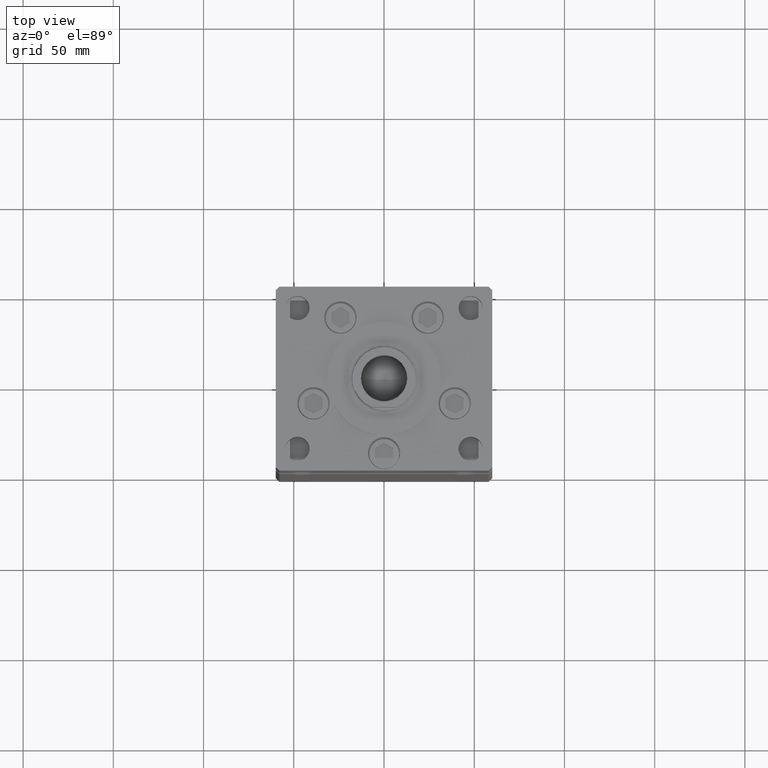
[diagram: clean part render]
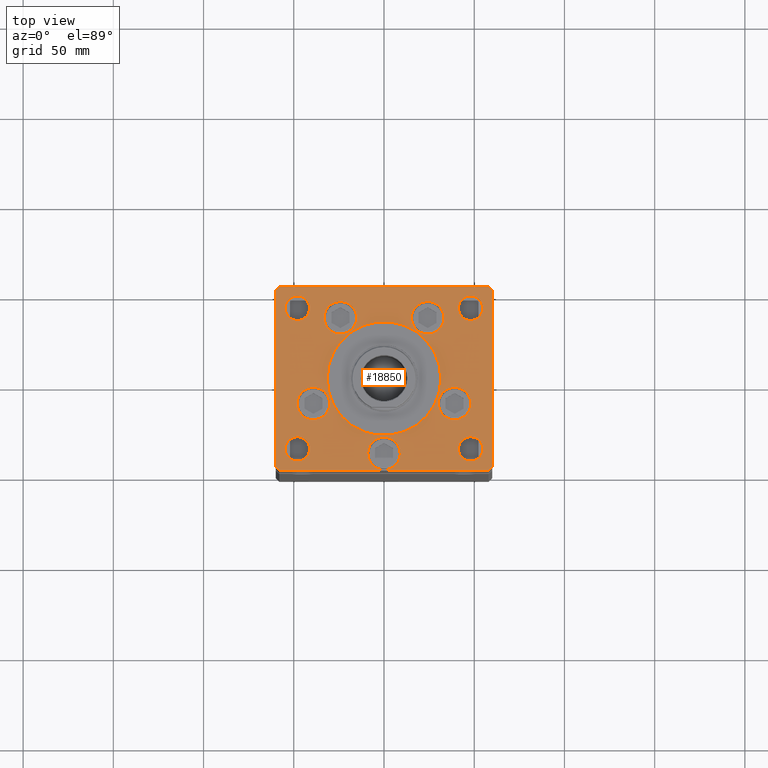
[diagram: same view with one face highlighted and labeled with its STEP entity id]
A machine part, top view. The second image highlights one B-rep face of the part: STEP entity #18850.
In plain terms, the highlighted planar face has unit normal (0, 0, 1).
Its self-contained STEP definition (entity closure, byte-faithful):
#155 = DIRECTION ( 'NONE',  ( 1.000000000000000000, 0.000000000000000000, 0.000000000000000000 ) ) ;
#329 = ORIENTED_EDGE ( 'NONE', *, *, #29688, .F. ) ;
#555 = CARTESIAN_POINT ( 'NONE',  ( -41.25000000000000000, 39.00000000000000711, 0.000000000000000000 ) ) ;
#593 = EDGE_CURVE ( 'NONE', #9785, #7400, #41994, .T. ) ;
#731 = EDGE_LOOP ( 'NONE', ( #52017, #38465 ) ) ;
#843 = ORIENTED_EDGE ( 'NONE', *, *, #45547, .T. ) ;
#1045 = DIRECTION ( 'NONE',  ( 0.000000000000000000, 0.000000000000000000, 1.000000000000000000 ) ) ;
#1464 = EDGE_LOOP ( 'NONE', ( #329, #30172 ) ) ;
#1577 = CARTESIAN_POINT ( 'NONE',  ( 24.19288941894913592, 33.71874999999998579, 0.000000000000000000 ) ) ;
#1680 = CARTESIAN_POINT ( 'NONE',  ( 58.00000000000001421, -50.99999999999992184, 0.000000000000000000 ) ) ;
#1795 = CARTESIAN_POINT ( 'NONE',  ( -15.19288941894913592, 33.71874999999998579, 0.000000000000000000 ) ) ;
#1818 = FACE_BOUND ( 'NONE', #12118, .T. ) ;
#1908 = ORIENTED_EDGE ( 'NONE', *, *, #10230, .F. ) ;
#2002 = EDGE_LOOP ( 'NONE', ( #17776, #40596 ) ) ;
#2124 = AXIS2_PLACEMENT_3D ( 'NONE', #40928, #32627, #3130 ) ;
#2241 = DIRECTION ( 'NONE',  ( 1.000000000000000000, 0.000000000000000000, 0.000000000000000000 ) ) ;
#2253 = ORIENTED_EDGE ( 'NONE', *, *, #22367, .T. ) ;
#2313 = CARTESIAN_POINT ( 'NONE',  ( -48.00000000000000000, -39.00000000000001421, 0.000000000000000000 ) ) ;
#2784 = VERTEX_POINT ( 'NONE', #20935 ) ;
#2849 = ORIENTED_EDGE ( 'NONE', *, *, #10592, .F. ) ;
#3130 = DIRECTION ( 'NONE',  ( 1.000000000000000000, 0.000000000000000000, 0.000000000000000000 ) ) ;
#3173 = VERTEX_POINT ( 'NONE', #49009 ) ;
#3340 = DIRECTION ( 'NONE',  ( 1.000000000000000000, 0.000000000000000000, 0.000000000000000000 ) ) ;
#3361 = ORIENTED_EDGE ( 'NONE', *, *, #18353, .T. ) ;
#3507 = EDGE_CURVE ( 'NONE', #12460, #43556, #18120, .T. ) ;
#3613 = LINE ( 'NONE', #7911, #28981 ) ;
#3963 = CARTESIAN_POINT ( 'NONE',  ( 15.19288941894913236, 33.71874999999998579, 0.000000000000000000 ) ) ;
#4186 = DIRECTION ( 'NONE',  ( -0.000000000000000000, -0.000000000000000000, -1.000000000000000000 ) ) ;
#4495 = AXIS2_PLACEMENT_3D ( 'NONE', #42277, #26458, #21917 ) ;
#4581 = AXIS2_PLACEMENT_3D ( 'NONE', #15291, #8835, #12314 ) ;
#4723 = AXIS2_PLACEMENT_3D ( 'NONE', #18201, #42062, #50384 ) ;
#4916 = DIRECTION ( 'NONE',  ( -1.000000000000000000, 0.000000000000000000, 0.000000000000000000 ) ) ;
#4980 = CARTESIAN_POINT ( 'NONE',  ( -24.19288941894913592, 33.71874999999998579, 0.000000000000000000 ) ) ;
#5183 = CARTESIAN_POINT ( 'NONE',  ( 39.12657522565563539, -13.83333333333332860, 0.000000000000000000 ) ) ;
#5213 = CARTESIAN_POINT ( 'NONE',  ( -54.75000000000000000, -39.00000000000001421, 0.000000000000000000 ) ) ;
#5319 = VECTOR ( 'NONE', #14460, 1000.000000000000114 ) ;
#5346 = DIRECTION ( 'NONE',  ( 1.000000000000000000, 0.000000000000000000, 0.000000000000000000 ) ) ;
#5646 = VERTEX_POINT ( 'NONE', #38600 ) ;
#5706 = AXIS2_PLACEMENT_3D ( 'NONE', #36671, #4186, #53040 ) ;
#5819 = AXIS2_PLACEMENT_3D ( 'NONE', #35813, #23756, #3340 ) ;
#5984 = CARTESIAN_POINT ( 'NONE',  ( 58.00000000000000000, 51.00000000000000711, 0.000000000000000000 ) ) ;
#6078 = CARTESIAN_POINT ( 'NONE',  ( 48.12657522565563539, -13.83333333333332860, 0.000000000000000000 ) ) ;
#6122 = CARTESIAN_POINT ( 'NONE',  ( 60.00000000000001421, 49.00000000000002842, 0.000000000000000000 ) ) ;
#6208 = CIRCLE ( 'NONE', #29333, 31.50000000000000000 ) ;
#6375 = EDGE_CURVE ( 'NONE', #46124, #32208, #14989, .T. ) ;
#6544 = VERTEX_POINT ( 'NONE', #52809 ) ;
#6561 = EDGE_LOOP ( 'NONE', ( #42421, #52048 ) ) ;
#6615 = ORIENTED_EDGE ( 'NONE', *, *, #34108, .F. ) ;
#6679 = CARTESIAN_POINT ( 'NONE',  ( 58.00000000000001421, -50.99999999999992184, 0.000000000000000000 ) ) ;
#6985 = CARTESIAN_POINT ( 'NONE',  ( 48.00000000000000000, -39.00000000000001421, 0.000000000000000000 ) ) ;
#7270 = VECTOR ( 'NONE', #50519, 1000.000000000000000 ) ;
#7381 = DIRECTION ( 'NONE',  ( 0.7071067811865474617, -0.7071067811865474617, 0.000000000000000000 ) ) ;
#7400 = VERTEX_POINT ( 'NONE', #3963 ) ;
#7911 = CARTESIAN_POINT ( 'NONE',  ( -60.00000000000000000, -49.00000000000004263, 0.000000000000000000 ) ) ;
#8192 = DIRECTION ( 'NONE',  ( 1.000000000000000000, 0.000000000000000000, 0.000000000000000000 ) ) ;
#8294 = VECTOR ( 'NONE', #42813, 1000.000000000000000 ) ;
#8451 = DIRECTION ( 'NONE',  ( 0.000000000000000000, 0.000000000000000000, 1.000000000000000000 ) ) ;
#8496 = DIRECTION ( 'NONE',  ( -1.000000000000000000, 0.000000000000000000, 0.000000000000000000 ) ) ;
#8554 = CIRCLE ( 'NONE', #17140, 9.000000000000001776 ) ;
#8772 = ORIENTED_EDGE ( 'NONE', *, *, #39119, .T. ) ;
#8835 = DIRECTION ( 'NONE',  ( 0.000000000000000000, 0.000000000000000000, 1.000000000000000000 ) ) ;
#9180 = DIRECTION ( 'NONE',  ( 1.000000000000000000, 0.000000000000000000, 0.000000000000000000 ) ) ;
#9246 = EDGE_LOOP ( 'NONE', ( #16247, #40904, #29467, #45911, #2253, #3361, #48884, #11221 ) ) ;
#9347 = FACE_BOUND ( 'NONE', #35577, .T. ) ;
#9785 = VERTEX_POINT ( 'NONE', #37650 ) ;
#9880 = DIRECTION ( 'NONE',  ( -0.7071067811865536790, 0.7071067811865414665, 0.000000000000000000 ) ) ;
#10230 = EDGE_CURVE ( 'NONE', #20457, #43816, #13156, .T. ) ;
#10592 = EDGE_CURVE ( 'NONE', #15648, #3173, #40583, .T. ) ;
#10843 = VERTEX_POINT ( 'NONE', #14515 ) ;
#11221 = ORIENTED_EDGE ( 'NONE', *, *, #20250, .T. ) ;
#11376 = EDGE_CURVE ( 'NONE', #20351, #21675, #27651, .T. ) ;
#11788 = EDGE_CURVE ( 'NONE', #5646, #18176, #6208, .T. ) ;
#11800 = VERTEX_POINT ( 'NONE', #43788 ) ;
#12118 = EDGE_LOOP ( 'NONE', ( #843, #8772 ) ) ;
#12314 = DIRECTION ( 'NONE',  ( 1.000000000000000000, 0.000000000000000000, 0.000000000000000000 ) ) ;
#12460 = VERTEX_POINT ( 'NONE', #22384 ) ;
#12552 = CARTESIAN_POINT ( 'NONE',  ( 54.75000000000000000, 39.00000000000000000, 0.000000000000000000 ) ) ;
#12716 = AXIS2_PLACEMENT_3D ( 'NONE', #24500, #16433, #9180 ) ;
#13156 = CIRCLE ( 'NONE', #4581, 6.749999999999999112 ) ;
#13183 = EDGE_CURVE ( 'NONE', #7400, #9785, #20870, .T. ) ;
#13346 = VECTOR ( 'NONE', #44727, 1000.000000000000000 ) ;
#13498 = DIRECTION ( 'NONE',  ( 0.000000000000000000, 0.000000000000000000, 1.000000000000000000 ) ) ;
#13620 = DIRECTION ( 'NONE',  ( -0.000000000000000000, -0.000000000000000000, -1.000000000000000000 ) ) ;
#14010 = AXIS2_PLACEMENT_3D ( 'NONE', #1577, #1045, #5346 ) ;
#14166 = FACE_BOUND ( 'NONE', #23516, .T. ) ;
#14235 = VECTOR ( 'NONE', #9880, 1000.000000000000000 ) ;
#14434 = CIRCLE ( 'NONE', #28151, 9.000000000000001776 ) ;
#14460 = DIRECTION ( 'NONE',  ( 0.7071067811865474617, 0.7071067811865474617, 0.000000000000000000 ) ) ;
#14515 = CARTESIAN_POINT ( 'NONE',  ( -60.00000000000000000, -49.00000000000004263, 0.000000000000000000 ) ) ;
#14989 = LINE ( 'NONE', #6679, #5319 ) ;
#15291 = CARTESIAN_POINT ( 'NONE',  ( 48.00000000000000000, 39.00000000000000000, 0.000000000000000000 ) ) ;
#15387 = EDGE_CURVE ( 'NONE', #3173, #15648, #32053, .T. ) ;
#15648 = VERTEX_POINT ( 'NONE', #5213 ) ;
#15782 = CARTESIAN_POINT ( 'NONE',  ( -54.75000000000000000, 39.00000000000000711, 0.000000000000000000 ) ) ;
#15940 = CARTESIAN_POINT ( 'NONE',  ( -31.50000000000000000, -6.938893903907228378E-15, 0.000000000000000000 ) ) ;
#16247 = ORIENTED_EDGE ( 'NONE', *, *, #29512, .T. ) ;
#16433 = DIRECTION ( 'NONE',  ( 0.000000000000000000, 0.000000000000000000, 1.000000000000000000 ) ) ;
#16556 = LINE ( 'NONE', #44467, #13346 ) ;
#16719 = CIRCLE ( 'NONE', #2124, 6.749999999999999112 ) ;
#17140 = AXIS2_PLACEMENT_3D ( 'NONE', #5183, #13498, #25589 ) ;
#17230 = AXIS2_PLACEMENT_3D ( 'NONE', #50550, #26151, #47048 ) ;
#17295 = VERTEX_POINT ( 'NONE', #40861 ) ;
#17469 = AXIS2_PLACEMENT_3D ( 'NONE', #18625, #39782, #2241 ) ;
#17776 = ORIENTED_EDGE ( 'NONE', *, *, #34462, .F. ) ;
#18021 = CARTESIAN_POINT ( 'NONE',  ( 41.25000000000000000, -39.00000000000001421, 0.000000000000000000 ) ) ;
#18120 = CIRCLE ( 'NONE', #17230, 9.000000000000001776 ) ;
#18176 = VERTEX_POINT ( 'NONE', #15940 ) ;
#18201 = CARTESIAN_POINT ( 'NONE',  ( 0.000000000000000000, 0.000000000000000000, 0.000000000000000000 ) ) ;
#18353 = EDGE_CURVE ( 'NONE', #46920, #17295, #50790, .T. ) ;
#18556 = EDGE_CURVE ( 'NONE', #38534, #46124, #20178, .T. ) ;
#18625 = CARTESIAN_POINT ( 'NONE',  ( -48.00000000000000000, -39.00000000000001421, 0.000000000000000000 ) ) ;
#18850 = ADVANCED_FACE ( 'NONE', ( #38574, #49846, #30283, #14166, #22235, #46098, #9347, #37509, #25456, #46630, #1818 ), #25717, .T. ) ;
#18865 = DIRECTION ( 'NONE',  ( 0.000000000000000000, 0.000000000000000000, 1.000000000000000000 ) ) ;
#19621 = CARTESIAN_POINT ( 'NONE',  ( 0.000000000000000000, -41.50000000000000000, 0.000000000000000000 ) ) ;
#20178 = LINE ( 'NONE', #41328, #20188 ) ;
#20188 = VECTOR ( 'NONE', #48845, 1000.000000000000000 ) ;
#20250 = EDGE_CURVE ( 'NONE', #35783, #10843, #16556, .T. ) ;
#20351 = VERTEX_POINT ( 'NONE', #6078 ) ;
#20457 = VERTEX_POINT ( 'NONE', #52186 ) ;
#20870 = CIRCLE ( 'NONE', #14010, 9.000000000000001776 ) ;
#20935 = CARTESIAN_POINT ( 'NONE',  ( 60.00000000000001421, 49.00000000000002842, 0.000000000000000000 ) ) ;
#20942 = VERTEX_POINT ( 'NONE', #18021 ) ;
#20966 = CARTESIAN_POINT ( 'NONE',  ( -30.12657522565563539, -13.83333333333332860, 0.000000000000000000 ) ) ;
#21124 = CARTESIAN_POINT ( 'NONE',  ( 54.75000000000000000, -39.00000000000001421, 0.000000000000000000 ) ) ;
#21675 = VERTEX_POINT ( 'NONE', #49499 ) ;
#21772 = AXIS2_PLACEMENT_3D ( 'NONE', #2313, #34254, #50348 ) ;
#21917 = DIRECTION ( 'NONE',  ( 1.000000000000000000, 0.000000000000000000, 0.000000000000000000 ) ) ;
#22183 = LINE ( 'NONE', #51398, #8294 ) ;
#22235 = FACE_BOUND ( 'NONE', #6561, .T. ) ;
#22367 = EDGE_CURVE ( 'NONE', #2784, #46920, #46628, .T. ) ;
#22384 = CARTESIAN_POINT ( 'NONE',  ( -48.12657522565563539, -13.83333333333332682, 0.000000000000000000 ) ) ;
#23150 = EDGE_CURVE ( 'NONE', #43626, #31249, #47668, .T. ) ;
#23238 = VERTEX_POINT ( 'NONE', #33705 ) ;
#23516 = EDGE_LOOP ( 'NONE', ( #50846, #6615 ) ) ;
#23654 = DIRECTION ( 'NONE',  ( 0.000000000000000000, 0.000000000000000000, 1.000000000000000000 ) ) ;
#23756 = DIRECTION ( 'NONE',  ( 0.000000000000000000, 0.000000000000000000, 1.000000000000000000 ) ) ;
#24500 = CARTESIAN_POINT ( 'NONE',  ( 0.000000000000000000, -6.938893903907228378E-15, 0.000000000000000000 ) ) ;
#25002 = EDGE_CURVE ( 'NONE', #32208, #2784, #22183, .T. ) ;
#25456 = FACE_BOUND ( 'NONE', #36383, .T. ) ;
#25589 = DIRECTION ( 'NONE',  ( 1.000000000000000000, 0.000000000000000000, 0.000000000000000000 ) ) ;
#25717 = PLANE ( 'NONE',  #4723 ) ;
#26151 = DIRECTION ( 'NONE',  ( 0.000000000000000000, 0.000000000000000000, 1.000000000000000000 ) ) ;
#26160 = CARTESIAN_POINT ( 'NONE',  ( -60.00000000000000000, 49.00000000000000000, 0.000000000000000000 ) ) ;
#26458 = DIRECTION ( 'NONE',  ( 0.000000000000000000, 0.000000000000000000, 1.000000000000000000 ) ) ;
#27473 = AXIS2_PLACEMENT_3D ( 'NONE', #45461, #8451, #8192 ) ;
#27651 = CIRCLE ( 'NONE', #4495, 9.000000000000001776 ) ;
#27681 = CIRCLE ( 'NONE', #43936, 9.000000000000000000 ) ;
#28151 = AXIS2_PLACEMENT_3D ( 'NONE', #42217, #46514, #30698 ) ;
#28420 = EDGE_CURVE ( 'NONE', #6544, #23238, #38368, .T. ) ;
#28981 = VECTOR ( 'NONE', #7381, 1000.000000000000114 ) ;
#29333 = AXIS2_PLACEMENT_3D ( 'NONE', #36007, #18865, #52372 ) ;
#29467 = ORIENTED_EDGE ( 'NONE', *, *, #6375, .T. ) ;
#29512 = EDGE_CURVE ( 'NONE', #10843, #38534, #3613, .T. ) ;
#29688 = EDGE_CURVE ( 'NONE', #43556, #12460, #14434, .T. ) ;
#30066 = AXIS2_PLACEMENT_3D ( 'NONE', #19621, #23654, #35974 ) ;
#30172 = ORIENTED_EDGE ( 'NONE', *, *, #3507, .F. ) ;
#30283 = FACE_BOUND ( 'NONE', #51413, .T. ) ;
#30645 = EDGE_CURVE ( 'NONE', #18176, #5646, #38436, .T. ) ;
#30698 = DIRECTION ( 'NONE',  ( 1.000000000000000000, 0.000000000000000000, 0.000000000000000000 ) ) ;
#31249 = VERTEX_POINT ( 'NONE', #15782 ) ;
#32053 = CIRCLE ( 'NONE', #21772, 6.749999999999999112 ) ;
#32208 = VERTEX_POINT ( 'NONE', #42254 ) ;
#32627 = DIRECTION ( 'NONE',  ( 0.000000000000000000, 0.000000000000000000, 1.000000000000000000 ) ) ;
#32910 = DIRECTION ( 'NONE',  ( 0.000000000000000000, 0.000000000000000000, 1.000000000000000000 ) ) ;
#33637 = AXIS2_PLACEMENT_3D ( 'NONE', #6985, #51799, #8496 ) ;
#33705 = CARTESIAN_POINT ( 'NONE',  ( -9.000000000000000000, -41.50000000000000000, 0.000000000000000000 ) ) ;
#34108 = EDGE_CURVE ( 'NONE', #21675, #20351, #8554, .T. ) ;
#34254 = DIRECTION ( 'NONE',  ( 0.000000000000000000, 0.000000000000000000, 1.000000000000000000 ) ) ;
#34376 = VECTOR ( 'NONE', #35991, 1000.000000000000000 ) ;
#34462 = EDGE_CURVE ( 'NONE', #51867, #11800, #46278, .T. ) ;
#34636 = DIRECTION ( 'NONE',  ( 0.000000000000000000, 0.000000000000000000, 1.000000000000000000 ) ) ;
#35577 = EDGE_LOOP ( 'NONE', ( #40104, #44621 ) ) ;
#35783 = VERTEX_POINT ( 'NONE', #26160 ) ;
#35813 = CARTESIAN_POINT ( 'NONE',  ( 0.000000000000000000, -41.50000000000000000, 0.000000000000000000 ) ) ;
#35974 = DIRECTION ( 'NONE',  ( 1.000000000000000000, 0.000000000000000000, 0.000000000000000000 ) ) ;
#35991 = DIRECTION ( 'NONE',  ( -0.7071067811865536790, -0.7071067811865414665, 0.000000000000000000 ) ) ;
#36007 = CARTESIAN_POINT ( 'NONE',  ( 0.000000000000000000, -6.938893903907228378E-15, 0.000000000000000000 ) ) ;
#36197 = EDGE_CURVE ( 'NONE', #23238, #6544, #46320, .T. ) ;
#36383 = EDGE_LOOP ( 'NONE', ( #39280, #2849 ) ) ;
#36668 = CARTESIAN_POINT ( 'NONE',  ( 58.00000000000000000, 51.00000000000000711, 0.000000000000000000 ) ) ;
#36671 = CARTESIAN_POINT ( 'NONE',  ( -48.00000000000000000, 39.00000000000000711, 0.000000000000000000 ) ) ;
#37488 = VERTEX_POINT ( 'NONE', #21124 ) ;
#37509 = FACE_BOUND ( 'NONE', #43683, .T. ) ;
#37650 = CARTESIAN_POINT ( 'NONE',  ( 33.19288941894913592, 33.71874999999998579, 0.000000000000000000 ) ) ;
#37765 = CARTESIAN_POINT ( 'NONE',  ( 48.00000000000000000, -39.00000000000001421, 0.000000000000000000 ) ) ;
#38368 = CIRCLE ( 'NONE', #5819, 9.000000000000000000 ) ;
#38436 = CIRCLE ( 'NONE', #12716, 31.50000000000000000 ) ;
#38465 = ORIENTED_EDGE ( 'NONE', *, *, #11788, .F. ) ;
#38534 = VERTEX_POINT ( 'NONE', #43904 ) ;
#38574 = FACE_BOUND ( 'NONE', #731, .T. ) ;
#38600 = CARTESIAN_POINT ( 'NONE',  ( 31.50000000000000000, -3.081256486593065689E-15, 0.000000000000000000 ) ) ;
#38651 = DIRECTION ( 'NONE',  ( 1.000000000000000000, 0.000000000000000000, 0.000000000000000000 ) ) ;
#39119 = EDGE_CURVE ( 'NONE', #20942, #37488, #41290, .T. ) ;
#39280 = ORIENTED_EDGE ( 'NONE', *, *, #15387, .F. ) ;
#39782 = DIRECTION ( 'NONE',  ( 0.000000000000000000, 0.000000000000000000, 1.000000000000000000 ) ) ;
#40104 = ORIENTED_EDGE ( 'NONE', *, *, #23150, .T. ) ;
#40583 = CIRCLE ( 'NONE', #17469, 6.749999999999999112 ) ;
#40596 = ORIENTED_EDGE ( 'NONE', *, *, #46874, .F. ) ;
#40861 = CARTESIAN_POINT ( 'NONE',  ( -57.99999999999998579, 50.99999999999997868, 0.000000000000000000 ) ) ;
#40904 = ORIENTED_EDGE ( 'NONE', *, *, #18556, .T. ) ;
#40928 = CARTESIAN_POINT ( 'NONE',  ( 48.00000000000000000, 39.00000000000000000, 0.000000000000000000 ) ) ;
#41290 = CIRCLE ( 'NONE', #48984, 6.749999999999999112 ) ;
#41328 = CARTESIAN_POINT ( 'NONE',  ( -58.00000000000000711, -51.00000000000002842, 0.000000000000000000 ) ) ;
#41667 = CARTESIAN_POINT ( 'NONE',  ( -48.00000000000000000, 39.00000000000000711, 0.000000000000000000 ) ) ;
#41711 = EDGE_CURVE ( 'NONE', #17295, #35783, #47542, .T. ) ;
#41994 = CIRCLE ( 'NONE', #27473, 9.000000000000001776 ) ;
#42062 = DIRECTION ( 'NONE',  ( -0.000000000000000000, 0.000000000000000000, 1.000000000000000000 ) ) ;
#42217 = CARTESIAN_POINT ( 'NONE',  ( -39.12657522565563539, -13.83333333333332860, 0.000000000000000000 ) ) ;
#42254 = CARTESIAN_POINT ( 'NONE',  ( 60.00000000000001421, -48.99999999999992895, 0.000000000000000000 ) ) ;
#42277 = CARTESIAN_POINT ( 'NONE',  ( 39.12657522565563539, -13.83333333333332860, 0.000000000000000000 ) ) ;
#42421 = ORIENTED_EDGE ( 'NONE', *, *, #28420, .F. ) ;
#42813 = DIRECTION ( 'NONE',  ( 0.000000000000000000, 1.000000000000000000, 0.000000000000000000 ) ) ;
#43032 = ORIENTED_EDGE ( 'NONE', *, *, #51347, .F. ) ;
#43556 = VERTEX_POINT ( 'NONE', #20966 ) ;
#43626 = VERTEX_POINT ( 'NONE', #555 ) ;
#43683 = EDGE_LOOP ( 'NONE', ( #43032, #1908 ) ) ;
#43788 = CARTESIAN_POINT ( 'NONE',  ( -33.19288941894913592, 33.71874999999998579, 0.000000000000000000 ) ) ;
#43816 = VERTEX_POINT ( 'NONE', #12552 ) ;
#43904 = CARTESIAN_POINT ( 'NONE',  ( -58.00000000000000711, -51.00000000000002842, 0.000000000000000000 ) ) ;
#43936 = AXIS2_PLACEMENT_3D ( 'NONE', #4980, #32910, #155 ) ;
#44467 = CARTESIAN_POINT ( 'NONE',  ( -60.00000000000000000, 49.00000000000000000, 0.000000000000000000 ) ) ;
#44621 = ORIENTED_EDGE ( 'NONE', *, *, #47356, .T. ) ;
#44727 = DIRECTION ( 'NONE',  ( 0.000000000000000000, -1.000000000000000000, 0.000000000000000000 ) ) ;
#44810 = ORIENTED_EDGE ( 'NONE', *, *, #593, .F. ) ;
#45461 = CARTESIAN_POINT ( 'NONE',  ( 24.19288941894913592, 33.71874999999998579, 0.000000000000000000 ) ) ;
#45547 = EDGE_CURVE ( 'NONE', #37488, #20942, #51642, .T. ) ;
#45556 = DIRECTION ( 'NONE',  ( -1.000000000000000000, 0.000000000000000000, 0.000000000000000000 ) ) ;
#45911 = ORIENTED_EDGE ( 'NONE', *, *, #25002, .T. ) ;
#46098 = FACE_BOUND ( 'NONE', #1464, .T. ) ;
#46124 = VERTEX_POINT ( 'NONE', #1680 ) ;
#46278 = CIRCLE ( 'NONE', #48833, 9.000000000000000000 ) ;
#46320 = CIRCLE ( 'NONE', #30066, 9.000000000000000000 ) ;
#46514 = DIRECTION ( 'NONE',  ( 0.000000000000000000, 0.000000000000000000, 1.000000000000000000 ) ) ;
#46628 = LINE ( 'NONE', #6122, #14235 ) ;
#46630 = FACE_OUTER_BOUND ( 'NONE', #9246, .T. ) ;
#46874 = EDGE_CURVE ( 'NONE', #11800, #51867, #27681, .T. ) ;
#46920 = VERTEX_POINT ( 'NONE', #36668 ) ;
#47048 = DIRECTION ( 'NONE',  ( 1.000000000000000000, 0.000000000000000000, 0.000000000000000000 ) ) ;
#47356 = EDGE_CURVE ( 'NONE', #31249, #43626, #49944, .T. ) ;
#47542 = LINE ( 'NONE', #52092, #34376 ) ;
#47668 = CIRCLE ( 'NONE', #5706, 6.749999999999999112 ) ;
#48833 = AXIS2_PLACEMENT_3D ( 'NONE', #51266, #34636, #38651 ) ;
#48845 = DIRECTION ( 'NONE',  ( 1.000000000000000000, 9.570888143320313916E-16, 0.000000000000000000 ) ) ;
#48884 = ORIENTED_EDGE ( 'NONE', *, *, #41711, .T. ) ;
#48984 = AXIS2_PLACEMENT_3D ( 'NONE', #37765, #13620, #45556 ) ;
#49009 = CARTESIAN_POINT ( 'NONE',  ( -41.25000000000000000, -39.00000000000001421, 0.000000000000000000 ) ) ;
#49427 = ORIENTED_EDGE ( 'NONE', *, *, #13183, .F. ) ;
#49499 = CARTESIAN_POINT ( 'NONE',  ( 30.12657522565563539, -13.83333333333332682, 0.000000000000000000 ) ) ;
#49846 = FACE_BOUND ( 'NONE', #2002, .T. ) ;
#49944 = CIRCLE ( 'NONE', #51691, 6.749999999999999112 ) ;
#50348 = DIRECTION ( 'NONE',  ( 1.000000000000000000, 0.000000000000000000, 0.000000000000000000 ) ) ;
#50384 = DIRECTION ( 'NONE',  ( 1.000000000000000000, 0.000000000000000000, 0.000000000000000000 ) ) ;
#50519 = DIRECTION ( 'NONE',  ( -1.000000000000000000, -2.392722035830078972E-16, 0.000000000000000000 ) ) ;
#50550 = CARTESIAN_POINT ( 'NONE',  ( -39.12657522565563539, -13.83333333333332860, 0.000000000000000000 ) ) ;
#50790 = LINE ( 'NONE', #5984, #7270 ) ;
#50846 = ORIENTED_EDGE ( 'NONE', *, *, #11376, .F. ) ;
#51265 = DIRECTION ( 'NONE',  ( -0.000000000000000000, -0.000000000000000000, -1.000000000000000000 ) ) ;
#51266 = CARTESIAN_POINT ( 'NONE',  ( -24.19288941894913592, 33.71874999999998579, 0.000000000000000000 ) ) ;
#51347 = EDGE_CURVE ( 'NONE', #43816, #20457, #16719, .T. ) ;
#51398 = CARTESIAN_POINT ( 'NONE',  ( 60.00000000000001421, -48.99999999999992895, 0.000000000000000000 ) ) ;
#51413 = EDGE_LOOP ( 'NONE', ( #44810, #49427 ) ) ;
#51642 = CIRCLE ( 'NONE', #33637, 6.749999999999999112 ) ;
#51691 = AXIS2_PLACEMENT_3D ( 'NONE', #41667, #51265, #4916 ) ;
#51799 = DIRECTION ( 'NONE',  ( -0.000000000000000000, -0.000000000000000000, -1.000000000000000000 ) ) ;
#51867 = VERTEX_POINT ( 'NONE', #1795 ) ;
#52017 = ORIENTED_EDGE ( 'NONE', *, *, #30645, .F. ) ;
#52048 = ORIENTED_EDGE ( 'NONE', *, *, #36197, .F. ) ;
#52092 = CARTESIAN_POINT ( 'NONE',  ( -57.99999999999998579, 50.99999999999997868, 0.000000000000000000 ) ) ;
#52186 = CARTESIAN_POINT ( 'NONE',  ( 41.25000000000000000, 39.00000000000000000, 0.000000000000000000 ) ) ;
#52372 = DIRECTION ( 'NONE',  ( 1.000000000000000000, 0.000000000000000000, 0.000000000000000000 ) ) ;
#52809 = CARTESIAN_POINT ( 'NONE',  ( 9.000000000000000000, -41.50000000000000000, 0.000000000000000000 ) ) ;
#53040 = DIRECTION ( 'NONE',  ( -1.000000000000000000, 0.000000000000000000, 0.000000000000000000 ) ) ;